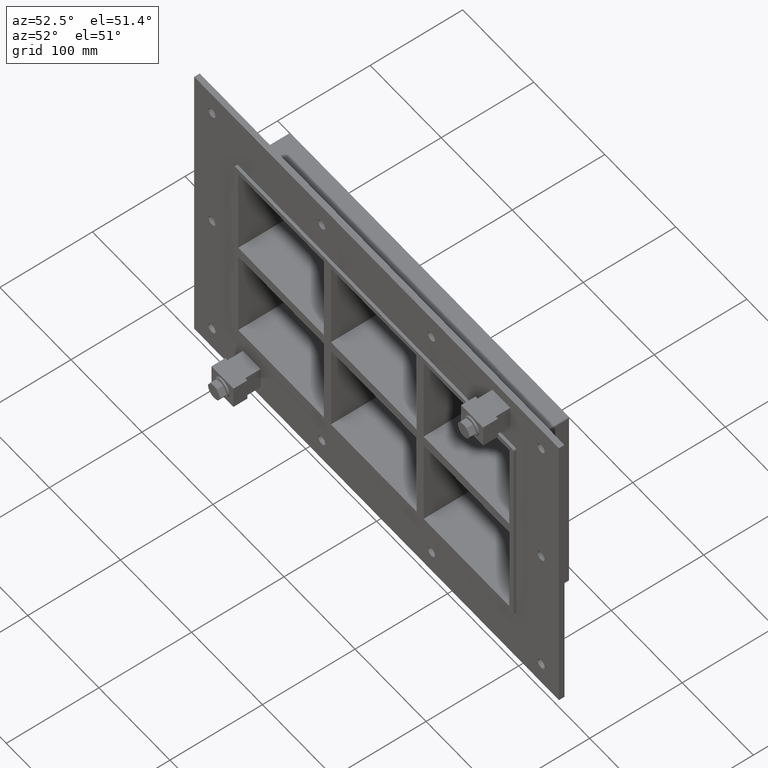
[diagram: clean part render]
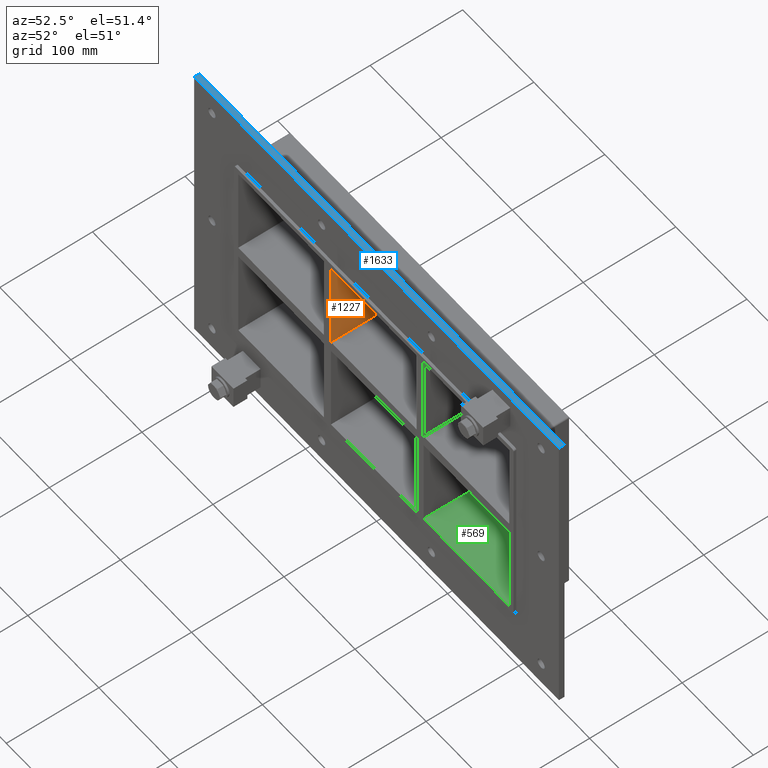
[diagram: same view with three faces highlighted in distinct colors, each labeled with its STEP entity id]
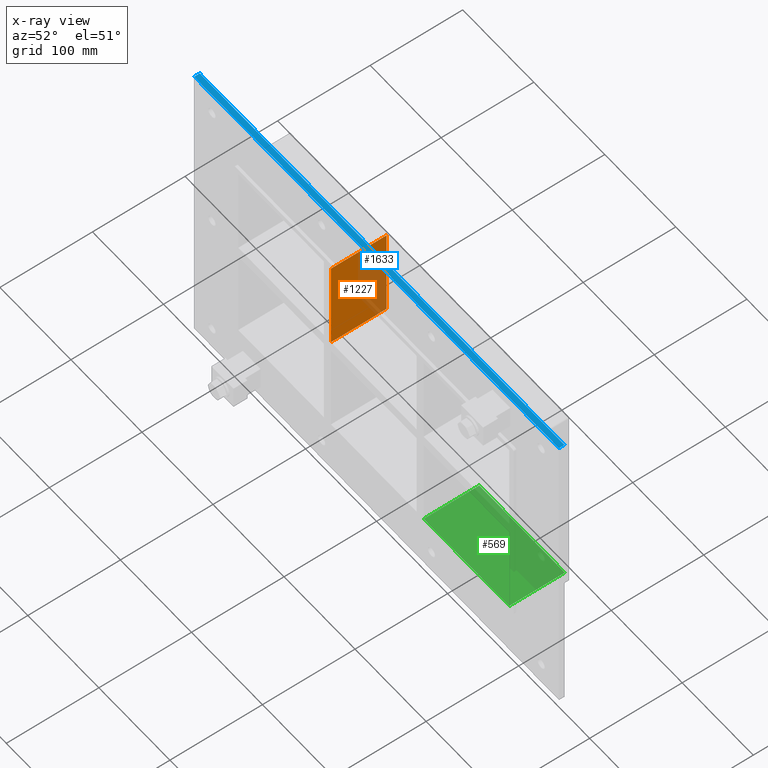
[diagram: x-ray of the same camera — body ghosted, the three highlighted faces saturated]
A machine part, auxiliary view with three faces highlighted in distinct colors.
The next image is the same camera in x-ray (body ghosted, the three faces saturated) — at least one of them is partly hidden behind the body in this view.
Their STEP definitions:

[orange] entity #1227 — the highlighted planar face has unit normal (1, 0, 0).
#663=CARTESIAN_POINT('',(-60.249999999996362,-3.0,6.000000000000227));
#664=VERTEX_POINT('',#663);
#671=CARTESIAN_POINT('',(-60.249999999996362,-3.0,107.00000000000003));
#672=VERTEX_POINT('',#671);
#673=CARTESIAN_POINT('',(-60.249999999996362,-3.0,107.00000000000003));
#674=DIRECTION('',(0.0,0.0,-1.0));
#675=VECTOR('',#674,100.9999999999998);
#676=LINE('',#673,#675);
#677=EDGE_CURVE('',#672,#664,#676,.T.);
#879=CARTESIAN_POINT('',(-60.249999999996362,57.0,107.00000000000003));
#880=VERTEX_POINT('',#879);
#881=CARTESIAN_POINT('',(-60.249999999996362,-3.0,107.00000000000003));
#882=DIRECTION('',(0.0,1.0,0.0));
#883=VECTOR('',#882,60.000000000000007);
#884=LINE('',#881,#883);
#885=EDGE_CURVE('',#672,#880,#884,.T.);
#957=CARTESIAN_POINT('',(-60.249999999996362,57.0,6.000000000000227));
#958=VERTEX_POINT('',#957);
#965=CARTESIAN_POINT('',(-60.249999999996362,-3.0,6.000000000000227));
#966=DIRECTION('',(0.0,1.0,0.0));
#967=VECTOR('',#966,60.0);
#968=LINE('',#965,#967);
#969=EDGE_CURVE('',#664,#958,#968,.T.);
#1146=CARTESIAN_POINT('',(-60.249999999996362,57.0,107.00000000000003));
#1147=DIRECTION('',(0.0,0.0,-1.0));
#1148=VECTOR('',#1147,100.9999999999998);
#1149=LINE('',#1146,#1148);
#1150=EDGE_CURVE('',#880,#958,#1149,.T.);
#1216=CARTESIAN_POINT('',(-60.249999999996362,-3.0,107.00000000000003));
#1217=DIRECTION('',(1.0,0.0,0.0));
#1218=DIRECTION('',(0.0,0.0,-1.0));
#1219=AXIS2_PLACEMENT_3D('',#1216,#1217,#1218);
#1220=PLANE('',#1219);
#1221=ORIENTED_EDGE('',*,*,#969,.T.);
#1222=ORIENTED_EDGE('',*,*,#1150,.F.);
#1223=ORIENTED_EDGE('',*,*,#885,.F.);
#1224=ORIENTED_EDGE('',*,*,#677,.T.);
#1225=EDGE_LOOP('',(#1221,#1222,#1223,#1224));
#1226=FACE_OUTER_BOUND('',#1225,.T.);
#1227=ADVANCED_FACE('',(#1226),#1220,.T.);

[blue] entity #1633 — the highlighted planar face has unit normal (0, 0, 1).
#1291=CARTESIAN_POINT('',(-256.75,6.000000000000001,173.00000000000006));
#1292=VERTEX_POINT('',#1291);
#1293=CARTESIAN_POINT('',(256.75,6.000000000000001,173.00000000000006));
#1294=VERTEX_POINT('',#1293);
#1295=CARTESIAN_POINT('',(-256.75,6.000000000000001,173.00000000000006));
#1296=DIRECTION('',(1.0,0.0,0.0));
#1297=VECTOR('',#1296,513.5);
#1298=LINE('',#1295,#1297);
#1299=EDGE_CURVE('',#1292,#1294,#1298,.T.);
#1431=CARTESIAN_POINT('',(-256.75,0.0,173.00000000000006));
#1432=VERTEX_POINT('',#1431);
#1433=CARTESIAN_POINT('',(256.75,0.0,173.00000000000006));
#1434=VERTEX_POINT('',#1433);
#1435=CARTESIAN_POINT('',(-256.75,0.0,173.00000000000006));
#1436=DIRECTION('',(1.0,0.0,0.0));
#1437=VECTOR('',#1436,513.5);
#1438=LINE('',#1435,#1437);
#1439=EDGE_CURVE('',#1432,#1434,#1438,.T.);
#1572=CARTESIAN_POINT('',(-256.75,0.0,173.00000000000006));
#1573=DIRECTION('',(0.0,1.0,0.0));
#1574=VECTOR('',#1573,6.000000000000001);
#1575=LINE('',#1572,#1574);
#1576=EDGE_CURVE('',#1432,#1292,#1575,.T.);
#1613=CARTESIAN_POINT('',(256.75,0.0,173.00000000000006));
#1614=DIRECTION('',(0.0,1.0,0.0));
#1615=VECTOR('',#1614,6.000000000000001);
#1616=LINE('',#1613,#1615);
#1617=EDGE_CURVE('',#1434,#1294,#1616,.T.);
#1622=CARTESIAN_POINT('',(-256.75,0.0,173.00000000000006));
#1623=DIRECTION('',(0.0,0.0,1.0));
#1624=DIRECTION('',(1.0,0.0,0.0));
#1625=AXIS2_PLACEMENT_3D('',#1622,#1623,#1624);
#1626=PLANE('',#1625);
#1627=ORIENTED_EDGE('',*,*,#1439,.T.);
#1628=ORIENTED_EDGE('',*,*,#1617,.T.);
#1629=ORIENTED_EDGE('',*,*,#1299,.F.);
#1630=ORIENTED_EDGE('',*,*,#1576,.F.);
#1631=EDGE_LOOP('',(#1627,#1628,#1629,#1630));
#1632=FACE_OUTER_BOUND('',#1631,.T.);
#1633=ADVANCED_FACE('',(#1632),#1626,.T.);

[green] entity #569 — the highlighted planar face has unit normal (0, 0, -1).
#483=CARTESIAN_POINT('',(70.250000000003638,-3.0,-106.9999999999817));
#484=VERTEX_POINT('',#483);
#491=CARTESIAN_POINT('',(70.250000000003638,57.0,-106.9999999999817));
#492=VERTEX_POINT('',#491);
#493=CARTESIAN_POINT('',(70.250000000003638,57.000000000000007,-107.00000000000003));
#494=DIRECTION('',(0.0,-1.0,0.0));
#495=VECTOR('',#494,60.000000000000007);
#496=LINE('',#493,#495);
#497=EDGE_CURVE('',#492,#484,#496,.T.);
#539=CARTESIAN_POINT('',(190.75000000000003,0.0,-107.00000000000003));
#540=DIRECTION('',(0.0,0.0,-1.0));
#541=DIRECTION('',(-1.0,0.0,0.0));
#542=AXIS2_PLACEMENT_3D('',#539,#540,#541);
#543=PLANE('',#542);
#544=ORIENTED_EDGE('',*,*,#497,.T.);
#545=CARTESIAN_POINT('',(190.75000000000003,-3.0,-107.0));
#546=VERTEX_POINT('',#545);
#547=CARTESIAN_POINT('',(190.75000000000003,-3.0,-107.00000000000003));
#548=DIRECTION('',(-1.0,0.0,0.0));
#549=VECTOR('',#548,120.49999999999639);
#550=LINE('',#547,#549);
#551=EDGE_CURVE('',#546,#484,#550,.T.);
#552=ORIENTED_EDGE('',*,*,#551,.F.);
#553=CARTESIAN_POINT('',(190.75000000000003,57.0,-107.0));
#554=VERTEX_POINT('',#553);
#555=CARTESIAN_POINT('',(190.75000000000003,56.999999999999993,-107.0));
#556=DIRECTION('',(0.0,-1.0,0.0));
#557=VECTOR('',#556,59.999999999999993);
#558=LINE('',#555,#557);
#559=EDGE_CURVE('',#554,#546,#558,.T.);
#560=ORIENTED_EDGE('',*,*,#559,.F.);
#561=CARTESIAN_POINT('',(70.250000000003638,57.0,-107.00000000000003));
#562=DIRECTION('',(1.0,0.0,0.0));
#563=VECTOR('',#562,120.49999999999639);
#564=LINE('',#561,#563);
#565=EDGE_CURVE('',#492,#554,#564,.T.);
#566=ORIENTED_EDGE('',*,*,#565,.F.);
#567=EDGE_LOOP('',(#544,#552,#560,#566));
#568=FACE_OUTER_BOUND('',#567,.T.);
#569=ADVANCED_FACE('',(#568),#543,.F.);